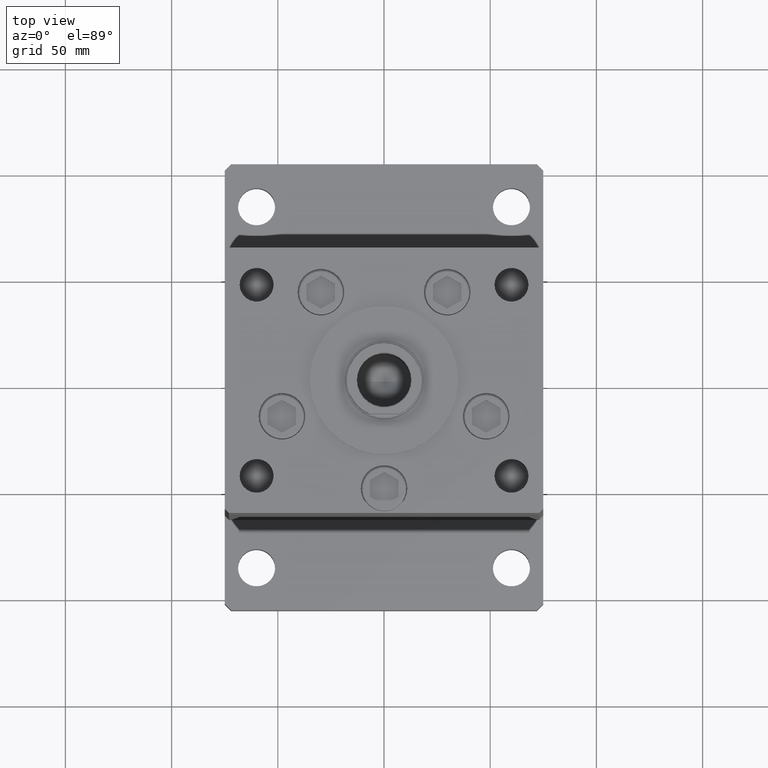
[diagram: clean part render]
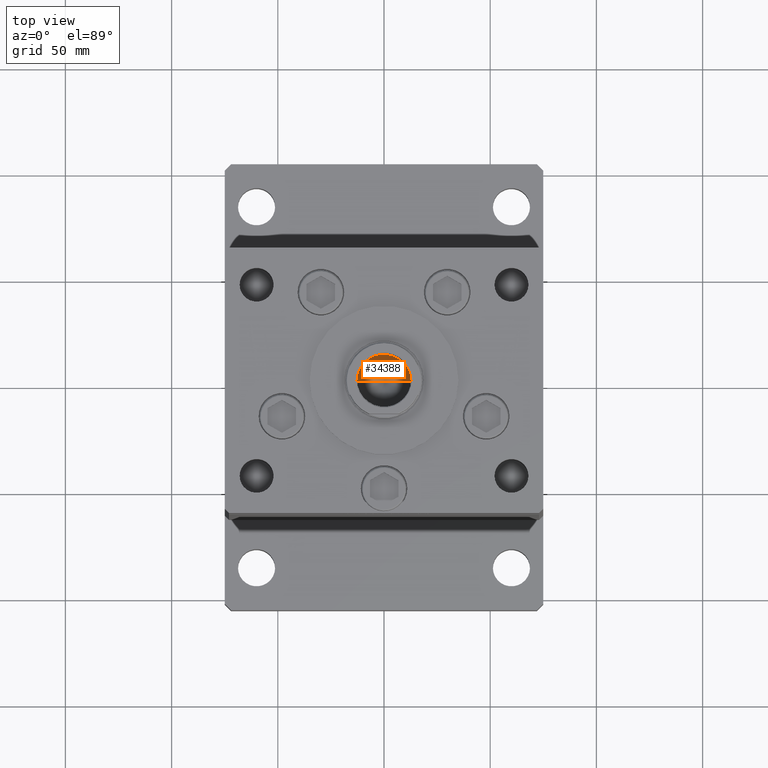
[diagram: same view with one face highlighted and labeled with its STEP entity id]
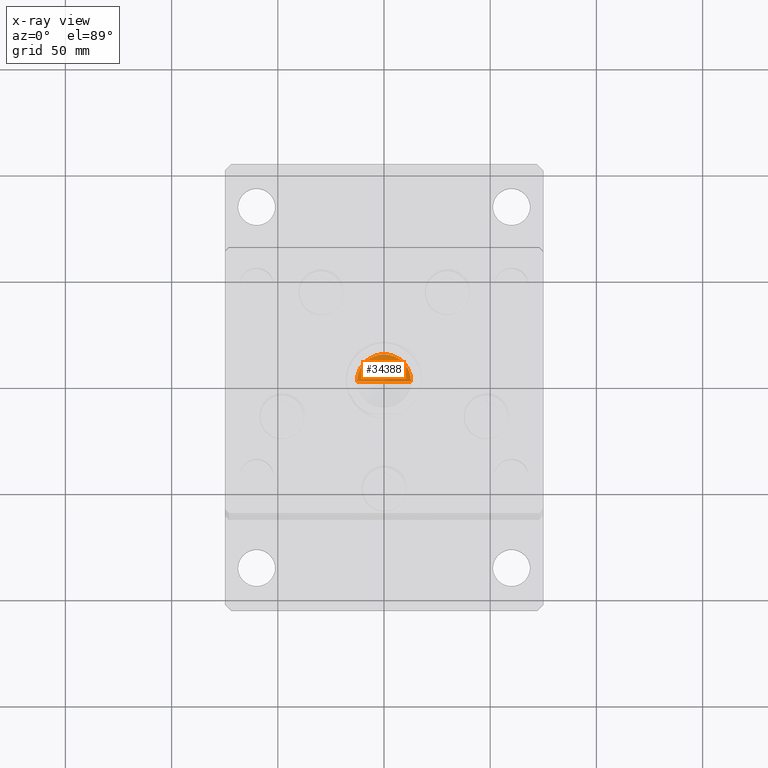
[diagram: x-ray of the same camera — body ghosted, the highlighted face saturated]
A machine part, top view. The second image highlights one B-rep face of the part: STEP entity #34388.
The next image is the same camera in x-ray: the body ghosted, the highlighted face saturated — about 0% of this face is hidden behind the body in this view.
In plain terms, the highlighted conical surface has half-angle 59 deg.
Its self-contained STEP definition (entity closure, byte-faithful):
#412 = DIRECTION ( 'NONE',  ( 1.000000000000000000, 0.000000000000000000, 0.000000000000000000 ) ) ;
#2380 = EDGE_LOOP ( 'NONE', ( #8445, #23166, #2966 ) ) ;
#2966 = ORIENTED_EDGE ( 'NONE', *, *, #19262, .T. ) ;
#7299 = CARTESIAN_POINT ( 'NONE',  ( -1.307202896762960287E-14, 0.000000000000000000, 114.8390271073986071 ) ) ;
#8445 = ORIENTED_EDGE ( 'NONE', *, *, #46055, .F. ) ;
#9776 = CARTESIAN_POINT ( 'NONE',  ( -12.74999999999999112, 1.561424668912874125E-15, 122.5000000000000142 ) ) ;
#11153 = CARTESIAN_POINT ( 'NONE',  ( -12.74999999999999112, 1.561424668912874125E-15, 122.5000000000000142 ) ) ;
#11619 = AXIS2_PLACEMENT_3D ( 'NONE', #38582, #35037, #26877 ) ;
#11808 = CARTESIAN_POINT ( 'NONE',  ( 12.74999999999999112, 0.000000000000000000, 122.5000000000000142 ) ) ;
#11809 = VERTEX_POINT ( 'NONE', #7299 ) ;
#19262 = EDGE_CURVE ( 'NONE', #43781, #50377, #42506, .T. ) ;
#22542 = FACE_OUTER_BOUND ( 'NONE', #2380, .T. ) ;
#23085 = LINE ( 'NONE', #11153, #40203 ) ;
#23166 = ORIENTED_EDGE ( 'NONE', *, *, #23343, .T. ) ;
#23343 = EDGE_CURVE ( 'NONE', #11809, #43781, #53307, .T. ) ;
#23434 = AXIS2_PLACEMENT_3D ( 'NONE', #33540, #25649, #412 ) ;
#25649 = DIRECTION ( 'NONE',  ( -0.000000000000000000, -0.000000000000000000, 1.000000000000000000 ) ) ;
#26877 = DIRECTION ( 'NONE',  ( 1.000000000000000000, 0.000000000000000000, 0.000000000000000000 ) ) ;
#28339 = DIRECTION ( 'NONE',  ( 0.8571673007021117785, 0.000000000000000000, 0.5150380749100550437 ) ) ;
#31434 = CARTESIAN_POINT ( 'NONE',  ( 12.74999999999999112, 0.000000000000000000, 122.5000000000000142 ) ) ;
#32217 = VECTOR ( 'NONE', #28339, 1000.000000000000000 ) ;
#33540 = CARTESIAN_POINT ( 'NONE',  ( 0.000000000000000000, 0.000000000000000000, 122.5000000000000142 ) ) ;
#34388 = ADVANCED_FACE ( 'NONE', ( #22542 ), #35019, .F. ) ;
#35019 = CONICAL_SURFACE ( 'NONE', #11619, 12.74999999999999112, 1.029744258676653423 ) ;
#35037 = DIRECTION ( 'NONE',  ( -0.000000000000000000, -0.000000000000000000, 1.000000000000000000 ) ) ;
#38582 = CARTESIAN_POINT ( 'NONE',  ( 0.000000000000000000, 0.000000000000000000, 122.5000000000000142 ) ) ;
#39915 = DIRECTION ( 'NONE',  ( -0.8571673007021117785, 1.049727191138617956E-16, 0.5150380749100550437 ) ) ;
#40203 = VECTOR ( 'NONE', #39915, 1000.000000000000000 ) ;
#42506 = CIRCLE ( 'NONE', #23434, 12.74999999999999112 ) ;
#43781 = VERTEX_POINT ( 'NONE', #31434 ) ;
#46055 = EDGE_CURVE ( 'NONE', #11809, #50377, #23085, .T. ) ;
#50377 = VERTEX_POINT ( 'NONE', #9776 ) ;
#53307 = LINE ( 'NONE', #11808, #32217 ) ;